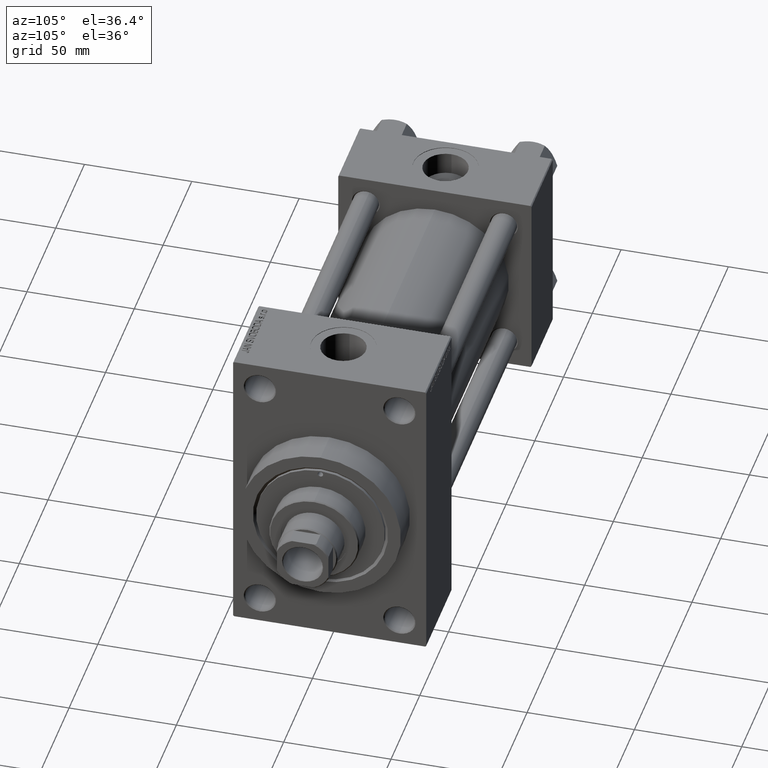
[diagram: clean part render]
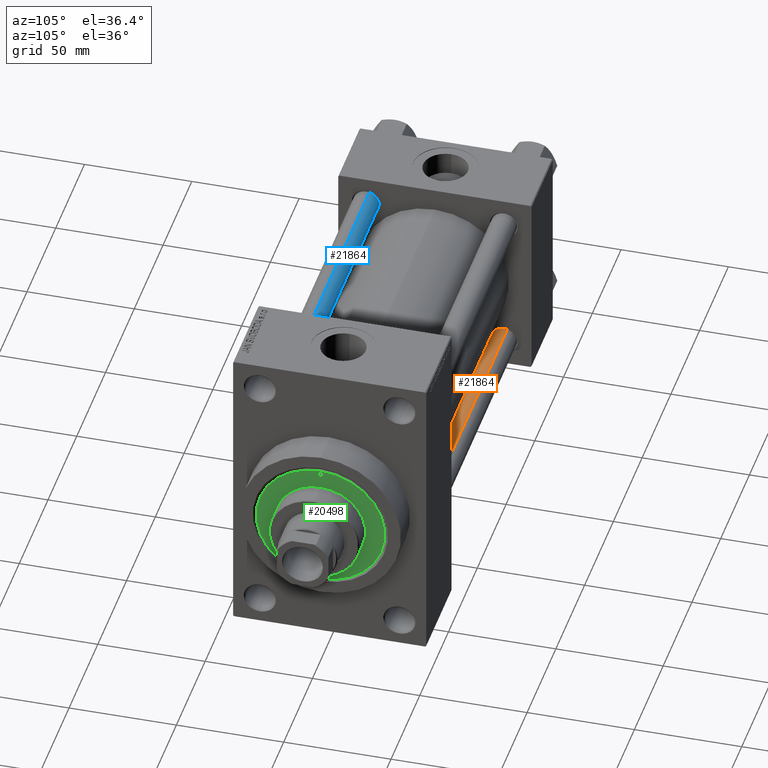
[diagram: same view with three faces highlighted in distinct colors, each labeled with its STEP entity id]
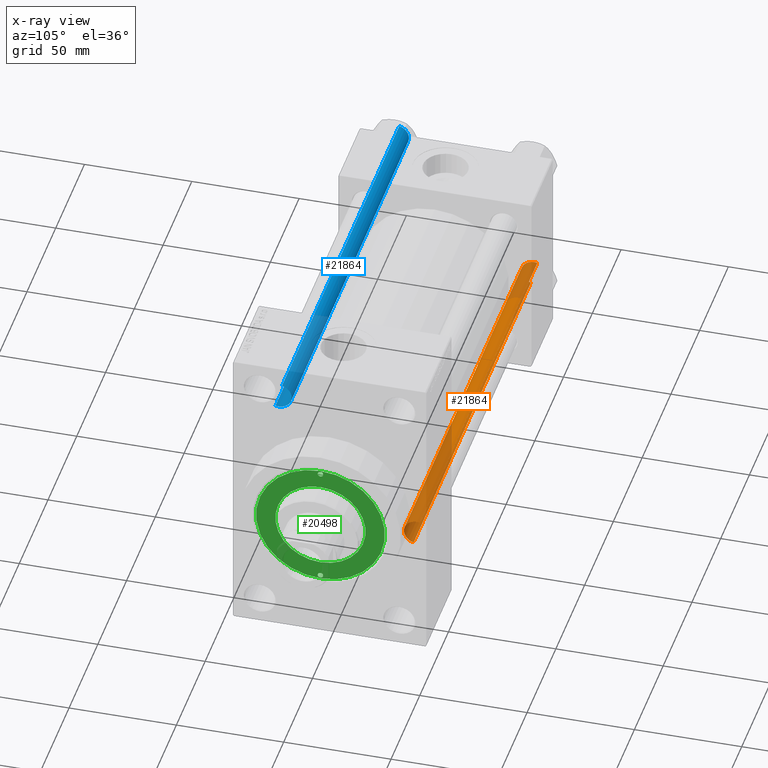
[diagram: x-ray of the same camera — body ghosted, the three highlighted faces saturated]
A machine part, auxiliary view with three faces highlighted in distinct colors.
The next image is the same camera in x-ray (body ghosted, the three faces saturated) — at least one of them is partly hidden behind the body in this view.
Their STEP definitions:

[orange] entity #21864 — the highlighted cylindrical surface (edge-blend (fillet) strip) has radius 6 mm, axis along (1, -0, 0).
#855 = ORIENTED_EDGE ( 'NONE', *, *, #45555, .T. ) ;
#1610 = CARTESIAN_POINT ( 'NONE',  ( -6.000000000000000888, 0.000000000000000000, 0.5000000000001114664 ) ) ;
#3534 = CARTESIAN_POINT ( 'NONE',  ( -6.000000000000000888, 0.000000000000000000, 205.0000000000000000 ) ) ;
#4113 = CARTESIAN_POINT ( 'NONE',  ( 0.000000000000000000, 0.000000000000000000, 204.5000000000000568 ) ) ;
#9475 = ORIENTED_EDGE ( 'NONE', *, *, #29589, .T. ) ;
#10439 = CARTESIAN_POINT ( 'NONE',  ( -6.000000000000000888, 0.000000000000000000, 204.5000000000000568 ) ) ;
#10606 = EDGE_CURVE ( 'NONE', #17560, #15261, #14183, .T. ) ;
#13169 = DIRECTION ( 'NONE',  ( 1.000000000000000000, 0.000000000000000000, 0.000000000000000000 ) ) ;
#14183 = LINE ( 'NONE', #14656, #21944 ) ;
#14656 = CARTESIAN_POINT ( 'NONE',  ( 6.000000000000000888, 7.347880794884119736E-16, 205.0000000000000000 ) ) ;
#14871 = CARTESIAN_POINT ( 'NONE',  ( 6.000000000000000888, 7.347880794884119736E-16, 0.5000000000001114664 ) ) ;
#14896 = DIRECTION ( 'NONE',  ( 1.000000000000000000, 0.000000000000000000, 0.000000000000000000 ) ) ;
#15261 = VERTEX_POINT ( 'NONE', #14871 ) ;
#15319 = AXIS2_PLACEMENT_3D ( 'NONE', #31281, #20485, #42084 ) ;
#17560 = VERTEX_POINT ( 'NONE', #28112 ) ;
#18740 = DIRECTION ( 'NONE',  ( 0.000000000000000000, 0.000000000000000000, -1.000000000000000000 ) ) ;
#20485 = DIRECTION ( 'NONE',  ( -0.000000000000000000, -0.000000000000000000, -1.000000000000000000 ) ) ;
#21864 = ADVANCED_FACE ( 'NONE', ( #35593 ), #31744, .T. ) ;
#21944 = VECTOR ( 'NONE', #25227, 1000.000000000000000 ) ;
#24437 = DIRECTION ( 'NONE',  ( -0.000000000000000000, -0.000000000000000000, 1.000000000000000000 ) ) ;
#24800 = VECTOR ( 'NONE', #41186, 1000.000000000000000 ) ;
#25227 = DIRECTION ( 'NONE',  ( -0.000000000000000000, -0.000000000000000000, -1.000000000000000000 ) ) ;
#25830 = LINE ( 'NONE', #3534, #24800 ) ;
#28112 = CARTESIAN_POINT ( 'NONE',  ( 6.000000000000000888, 7.347880794884119736E-16, 204.5000000000000568 ) ) ;
#29036 = VERTEX_POINT ( 'NONE', #1610 ) ;
#29589 = EDGE_CURVE ( 'NONE', #17560, #37984, #32457, .T. ) ;
#30147 = EDGE_CURVE ( 'NONE', #37984, #29036, #25830, .T. ) ;
#30191 = ORIENTED_EDGE ( 'NONE', *, *, #30147, .T. ) ;
#31281 = CARTESIAN_POINT ( 'NONE',  ( 0.000000000000000000, 0.000000000000000000, 205.0000000000000000 ) ) ;
#31744 = CYLINDRICAL_SURFACE ( 'NONE', #15319, 6.000000000000000888 ) ;
#31814 = AXIS2_PLACEMENT_3D ( 'NONE', #34539, #24437, #13169 ) ;
#32457 = CIRCLE ( 'NONE', #37833, 6.000000000000000888 ) ;
#34539 = CARTESIAN_POINT ( 'NONE',  ( 0.000000000000000000, 0.000000000000000000, 0.5000000000001114664 ) ) ;
#35593 = FACE_OUTER_BOUND ( 'NONE', #38686, .T. ) ;
#37833 = AXIS2_PLACEMENT_3D ( 'NONE', #4113, #18740, #14896 ) ;
#37984 = VERTEX_POINT ( 'NONE', #10439 ) ;
#38686 = EDGE_LOOP ( 'NONE', ( #45765, #9475, #30191, #855 ) ) ;
#41186 = DIRECTION ( 'NONE',  ( -0.000000000000000000, -0.000000000000000000, -1.000000000000000000 ) ) ;
#42084 = DIRECTION ( 'NONE',  ( -1.000000000000000000, 0.000000000000000000, 0.000000000000000000 ) ) ;
#45555 = EDGE_CURVE ( 'NONE', #29036, #15261, #45581, .T. ) ;
#45581 = CIRCLE ( 'NONE', #31814, 6.000000000000000888 ) ;
#45765 = ORIENTED_EDGE ( 'NONE', *, *, #10606, .F. ) ;

[blue] entity #21864 — the highlighted cylindrical surface (edge-blend (fillet) strip) has radius 6 mm, axis along (1, 0, 0).
#855 = ORIENTED_EDGE ( 'NONE', *, *, #45555, .T. ) ;
#1610 = CARTESIAN_POINT ( 'NONE',  ( -6.000000000000000888, 0.000000000000000000, 0.5000000000001114664 ) ) ;
#3534 = CARTESIAN_POINT ( 'NONE',  ( -6.000000000000000888, 0.000000000000000000, 205.0000000000000000 ) ) ;
#4113 = CARTESIAN_POINT ( 'NONE',  ( 0.000000000000000000, 0.000000000000000000, 204.5000000000000568 ) ) ;
#9475 = ORIENTED_EDGE ( 'NONE', *, *, #29589, .T. ) ;
#10439 = CARTESIAN_POINT ( 'NONE',  ( -6.000000000000000888, 0.000000000000000000, 204.5000000000000568 ) ) ;
#10606 = EDGE_CURVE ( 'NONE', #17560, #15261, #14183, .T. ) ;
#13169 = DIRECTION ( 'NONE',  ( 1.000000000000000000, 0.000000000000000000, 0.000000000000000000 ) ) ;
#14183 = LINE ( 'NONE', #14656, #21944 ) ;
#14656 = CARTESIAN_POINT ( 'NONE',  ( 6.000000000000000888, 7.347880794884119736E-16, 205.0000000000000000 ) ) ;
#14871 = CARTESIAN_POINT ( 'NONE',  ( 6.000000000000000888, 7.347880794884119736E-16, 0.5000000000001114664 ) ) ;
#14896 = DIRECTION ( 'NONE',  ( 1.000000000000000000, 0.000000000000000000, 0.000000000000000000 ) ) ;
#15261 = VERTEX_POINT ( 'NONE', #14871 ) ;
#15319 = AXIS2_PLACEMENT_3D ( 'NONE', #31281, #20485, #42084 ) ;
#17560 = VERTEX_POINT ( 'NONE', #28112 ) ;
#18740 = DIRECTION ( 'NONE',  ( 0.000000000000000000, 0.000000000000000000, -1.000000000000000000 ) ) ;
#20485 = DIRECTION ( 'NONE',  ( -0.000000000000000000, -0.000000000000000000, -1.000000000000000000 ) ) ;
#21864 = ADVANCED_FACE ( 'NONE', ( #35593 ), #31744, .T. ) ;
#21944 = VECTOR ( 'NONE', #25227, 1000.000000000000000 ) ;
#24437 = DIRECTION ( 'NONE',  ( -0.000000000000000000, -0.000000000000000000, 1.000000000000000000 ) ) ;
#24800 = VECTOR ( 'NONE', #41186, 1000.000000000000000 ) ;
#25227 = DIRECTION ( 'NONE',  ( -0.000000000000000000, -0.000000000000000000, -1.000000000000000000 ) ) ;
#25830 = LINE ( 'NONE', #3534, #24800 ) ;
#28112 = CARTESIAN_POINT ( 'NONE',  ( 6.000000000000000888, 7.347880794884119736E-16, 204.5000000000000568 ) ) ;
#29036 = VERTEX_POINT ( 'NONE', #1610 ) ;
#29589 = EDGE_CURVE ( 'NONE', #17560, #37984, #32457, .T. ) ;
#30147 = EDGE_CURVE ( 'NONE', #37984, #29036, #25830, .T. ) ;
#30191 = ORIENTED_EDGE ( 'NONE', *, *, #30147, .T. ) ;
#31281 = CARTESIAN_POINT ( 'NONE',  ( 0.000000000000000000, 0.000000000000000000, 205.0000000000000000 ) ) ;
#31744 = CYLINDRICAL_SURFACE ( 'NONE', #15319, 6.000000000000000888 ) ;
#31814 = AXIS2_PLACEMENT_3D ( 'NONE', #34539, #24437, #13169 ) ;
#32457 = CIRCLE ( 'NONE', #37833, 6.000000000000000888 ) ;
#34539 = CARTESIAN_POINT ( 'NONE',  ( 0.000000000000000000, 0.000000000000000000, 0.5000000000001114664 ) ) ;
#35593 = FACE_OUTER_BOUND ( 'NONE', #38686, .T. ) ;
#37833 = AXIS2_PLACEMENT_3D ( 'NONE', #4113, #18740, #14896 ) ;
#37984 = VERTEX_POINT ( 'NONE', #10439 ) ;
#38686 = EDGE_LOOP ( 'NONE', ( #45765, #9475, #30191, #855 ) ) ;
#41186 = DIRECTION ( 'NONE',  ( -0.000000000000000000, -0.000000000000000000, -1.000000000000000000 ) ) ;
#42084 = DIRECTION ( 'NONE',  ( -1.000000000000000000, 0.000000000000000000, 0.000000000000000000 ) ) ;
#45555 = EDGE_CURVE ( 'NONE', #29036, #15261, #45581, .T. ) ;
#45581 = CIRCLE ( 'NONE', #31814, 6.000000000000000888 ) ;
#45765 = ORIENTED_EDGE ( 'NONE', *, *, #10606, .F. ) ;

[green] entity #20498 — the highlighted planar face has unit normal (1, -0, -0).
#226 = ORIENTED_EDGE ( 'NONE', *, *, #42974, .T. ) ;
#1142 = EDGE_CURVE ( 'NONE', #11134, #17836, #4009, .T. ) ;
#1341 = CIRCLE ( 'NONE', #47285, 21.00000000000000000 ) ;
#1390 = VERTEX_POINT ( 'NONE', #21846 ) ;
#1674 = EDGE_CURVE ( 'NONE', #41453, #1390, #17008, .T. ) ;
#2271 = ORIENTED_EDGE ( 'NONE', *, *, #1142, .F. ) ;
#3794 = AXIS2_PLACEMENT_3D ( 'NONE', #23513, #16312, #4353 ) ;
#4009 = CIRCLE ( 'NONE', #36956, 1.249999999999997558 ) ;
#4353 = DIRECTION ( 'NONE',  ( 1.000000000000000000, 0.000000000000000000, -0.000000000000000000 ) ) ;
#6276 = ORIENTED_EDGE ( 'NONE', *, *, #1674, .F. ) ;
#6530 = EDGE_CURVE ( 'NONE', #10225, #21818, #44000, .T. ) ;
#6565 = CARTESIAN_POINT ( 'NONE',  ( 0.000000000000000000, 0.000000000000000000, 43.25999999999999801 ) ) ;
#7496 = CARTESIAN_POINT ( 'NONE',  ( -29.50000000000000000, 1.530808498934188612E-16, 43.25999999999999801 ) ) ;
#7984 = CARTESIAN_POINT ( 'NONE',  ( -28.25000000000000000, 0.000000000000000000, 43.25999999999999801 ) ) ;
#7998 = EDGE_LOOP ( 'NONE', ( #34371, #6276 ) ) ;
#8180 = FACE_BOUND ( 'NONE', #9406, .T. ) ;
#8559 = DIRECTION ( 'NONE',  ( 0.000000000000000000, 0.000000000000000000, 1.000000000000000000 ) ) ;
#8600 = DIRECTION ( 'NONE',  ( -0.000000000000000000, -0.000000000000000000, 1.000000000000000000 ) ) ;
#9406 = EDGE_LOOP ( 'NONE', ( #2271, #32895 ) ) ;
#10225 = VERTEX_POINT ( 'NONE', #42572 ) ;
#10423 = EDGE_CURVE ( 'NONE', #1390, #41453, #35725, .T. ) ;
#11134 = VERTEX_POINT ( 'NONE', #41585 ) ;
#11500 = CARTESIAN_POINT ( 'NONE',  ( 0.000000000000000000, 0.000000000000000000, 43.25999999999999801 ) ) ;
#12096 = EDGE_LOOP ( 'NONE', ( #41526, #44025 ) ) ;
#12715 = FACE_BOUND ( 'NONE', #7998, .T. ) ;
#15847 = FACE_BOUND ( 'NONE', #12096, .T. ) ;
#16312 = DIRECTION ( 'NONE',  ( 0.000000000000000000, 0.000000000000000000, 1.000000000000000000 ) ) ;
#17006 = DIRECTION ( 'NONE',  ( -0.000000000000000000, -0.000000000000000000, 1.000000000000000000 ) ) ;
#17008 = CIRCLE ( 'NONE', #46918, 1.249999999999997558 ) ;
#17836 = VERTEX_POINT ( 'NONE', #41045 ) ;
#18652 = DIRECTION ( 'NONE',  ( 1.000000000000000000, 0.000000000000000000, 0.000000000000000000 ) ) ;
#18915 = CIRCLE ( 'NONE', #24261, 1.249999999999997558 ) ;
#19249 = EDGE_CURVE ( 'NONE', #40690, #29580, #29062, .T. ) ;
#20134 = CARTESIAN_POINT ( 'NONE',  ( -28.25000000000000000, 0.000000000000000000, 43.25999999999999801 ) ) ;
#20412 = AXIS2_PLACEMENT_3D ( 'NONE', #7984, #29591, #45163 ) ;
#20498 = ADVANCED_FACE ( 'NONE', ( #12715, #8180, #15847, #41753 ), #44634, .T. ) ;
#21749 = DIRECTION ( 'NONE',  ( 0.000000000000000000, 0.000000000000000000, 1.000000000000000000 ) ) ;
#21818 = VERTEX_POINT ( 'NONE', #34405 ) ;
#21846 = CARTESIAN_POINT ( 'NONE',  ( -27.00000000000000355, 0.000000000000000000, 43.25999999999999801 ) ) ;
#23315 = AXIS2_PLACEMENT_3D ( 'NONE', #36641, #21749, #47433 ) ;
#23513 = CARTESIAN_POINT ( 'NONE',  ( 0.000000000000000000, 0.000000000000000000, 43.25999999999999801 ) ) ;
#24261 = AXIS2_PLACEMENT_3D ( 'NONE', #45301, #8600, #34750 ) ;
#26134 = DIRECTION ( 'NONE',  ( 1.000000000000000000, 0.000000000000000000, 0.000000000000000000 ) ) ;
#28487 = CARTESIAN_POINT ( 'NONE',  ( 21.00000000000000000, 2.571758278209441661E-15, 43.25999999999999801 ) ) ;
#29062 = CIRCLE ( 'NONE', #38253, 21.00000000000000000 ) ;
#29580 = VERTEX_POINT ( 'NONE', #44639 ) ;
#29591 = DIRECTION ( 'NONE',  ( -0.000000000000000000, -0.000000000000000000, 1.000000000000000000 ) ) ;
#30330 = ORIENTED_EDGE ( 'NONE', *, *, #6530, .T. ) ;
#31299 = DIRECTION ( 'NONE',  ( 1.000000000000000000, 0.000000000000000000, 0.000000000000000000 ) ) ;
#32002 = AXIS2_PLACEMENT_3D ( 'NONE', #41215, #8559, #18652 ) ;
#32895 = ORIENTED_EDGE ( 'NONE', *, *, #40604, .F. ) ;
#34371 = ORIENTED_EDGE ( 'NONE', *, *, #10423, .F. ) ;
#34405 = CARTESIAN_POINT ( 'NONE',  ( -30.00000000000000000, 0.000000000000000000, 43.25999999999999801 ) ) ;
#34750 = DIRECTION ( 'NONE',  ( 1.000000000000000000, 0.000000000000000000, 0.000000000000000000 ) ) ;
#34779 = DIRECTION ( 'NONE',  ( 1.000000000000000000, 0.000000000000000000, 0.000000000000000000 ) ) ;
#35725 = CIRCLE ( 'NONE', #20412, 1.249999999999997558 ) ;
#36641 = CARTESIAN_POINT ( 'NONE',  ( 0.000000000000000000, 0.000000000000000000, 43.25999999999999801 ) ) ;
#36956 = AXIS2_PLACEMENT_3D ( 'NONE', #43900, #39840, #40074 ) ;
#37381 = CIRCLE ( 'NONE', #32002, 30.00000000000000000 ) ;
#38253 = AXIS2_PLACEMENT_3D ( 'NONE', #6565, #43036, #31299 ) ;
#39840 = DIRECTION ( 'NONE',  ( -0.000000000000000000, -0.000000000000000000, 1.000000000000000000 ) ) ;
#40074 = DIRECTION ( 'NONE',  ( 1.000000000000000000, 0.000000000000000000, 0.000000000000000000 ) ) ;
#40604 = EDGE_CURVE ( 'NONE', #17836, #11134, #18915, .T. ) ;
#40690 = VERTEX_POINT ( 'NONE', #28487 ) ;
#41045 = CARTESIAN_POINT ( 'NONE',  ( 27.00000000000000355, 1.530808498934188612E-16, 43.25999999999999801 ) ) ;
#41215 = CARTESIAN_POINT ( 'NONE',  ( 0.000000000000000000, 0.000000000000000000, 43.25999999999999801 ) ) ;
#41453 = VERTEX_POINT ( 'NONE', #7496 ) ;
#41526 = ORIENTED_EDGE ( 'NONE', *, *, #41809, .F. ) ;
#41585 = CARTESIAN_POINT ( 'NONE',  ( 29.50000000000000000, 0.000000000000000000, 43.25999999999999801 ) ) ;
#41753 = FACE_OUTER_BOUND ( 'NONE', #44877, .T. ) ;
#41809 = EDGE_CURVE ( 'NONE', #29580, #40690, #1341, .T. ) ;
#42572 = CARTESIAN_POINT ( 'NONE',  ( 30.00000000000000000, 3.673940397442059178E-15, 43.25999999999999801 ) ) ;
#42974 = EDGE_CURVE ( 'NONE', #21818, #10225, #37381, .T. ) ;
#43036 = DIRECTION ( 'NONE',  ( 0.000000000000000000, 0.000000000000000000, 1.000000000000000000 ) ) ;
#43900 = CARTESIAN_POINT ( 'NONE',  ( 28.25000000000000000, 0.000000000000000000, 43.25999999999999801 ) ) ;
#44000 = CIRCLE ( 'NONE', #23315, 30.00000000000000000 ) ;
#44025 = ORIENTED_EDGE ( 'NONE', *, *, #19249, .F. ) ;
#44368 = DIRECTION ( 'NONE',  ( 0.000000000000000000, 0.000000000000000000, 1.000000000000000000 ) ) ;
#44634 = PLANE ( 'NONE',  #3794 ) ;
#44639 = CARTESIAN_POINT ( 'NONE',  ( -21.00000000000000000, 0.000000000000000000, 43.25999999999999801 ) ) ;
#44877 = EDGE_LOOP ( 'NONE', ( #226, #30330 ) ) ;
#45163 = DIRECTION ( 'NONE',  ( 1.000000000000000000, 0.000000000000000000, 0.000000000000000000 ) ) ;
#45301 = CARTESIAN_POINT ( 'NONE',  ( 28.25000000000000000, 0.000000000000000000, 43.25999999999999801 ) ) ;
#46918 = AXIS2_PLACEMENT_3D ( 'NONE', #20134, #17006, #34779 ) ;
#47285 = AXIS2_PLACEMENT_3D ( 'NONE', #11500, #44368, #26134 ) ;
#47433 = DIRECTION ( 'NONE',  ( 1.000000000000000000, 0.000000000000000000, 0.000000000000000000 ) ) ;